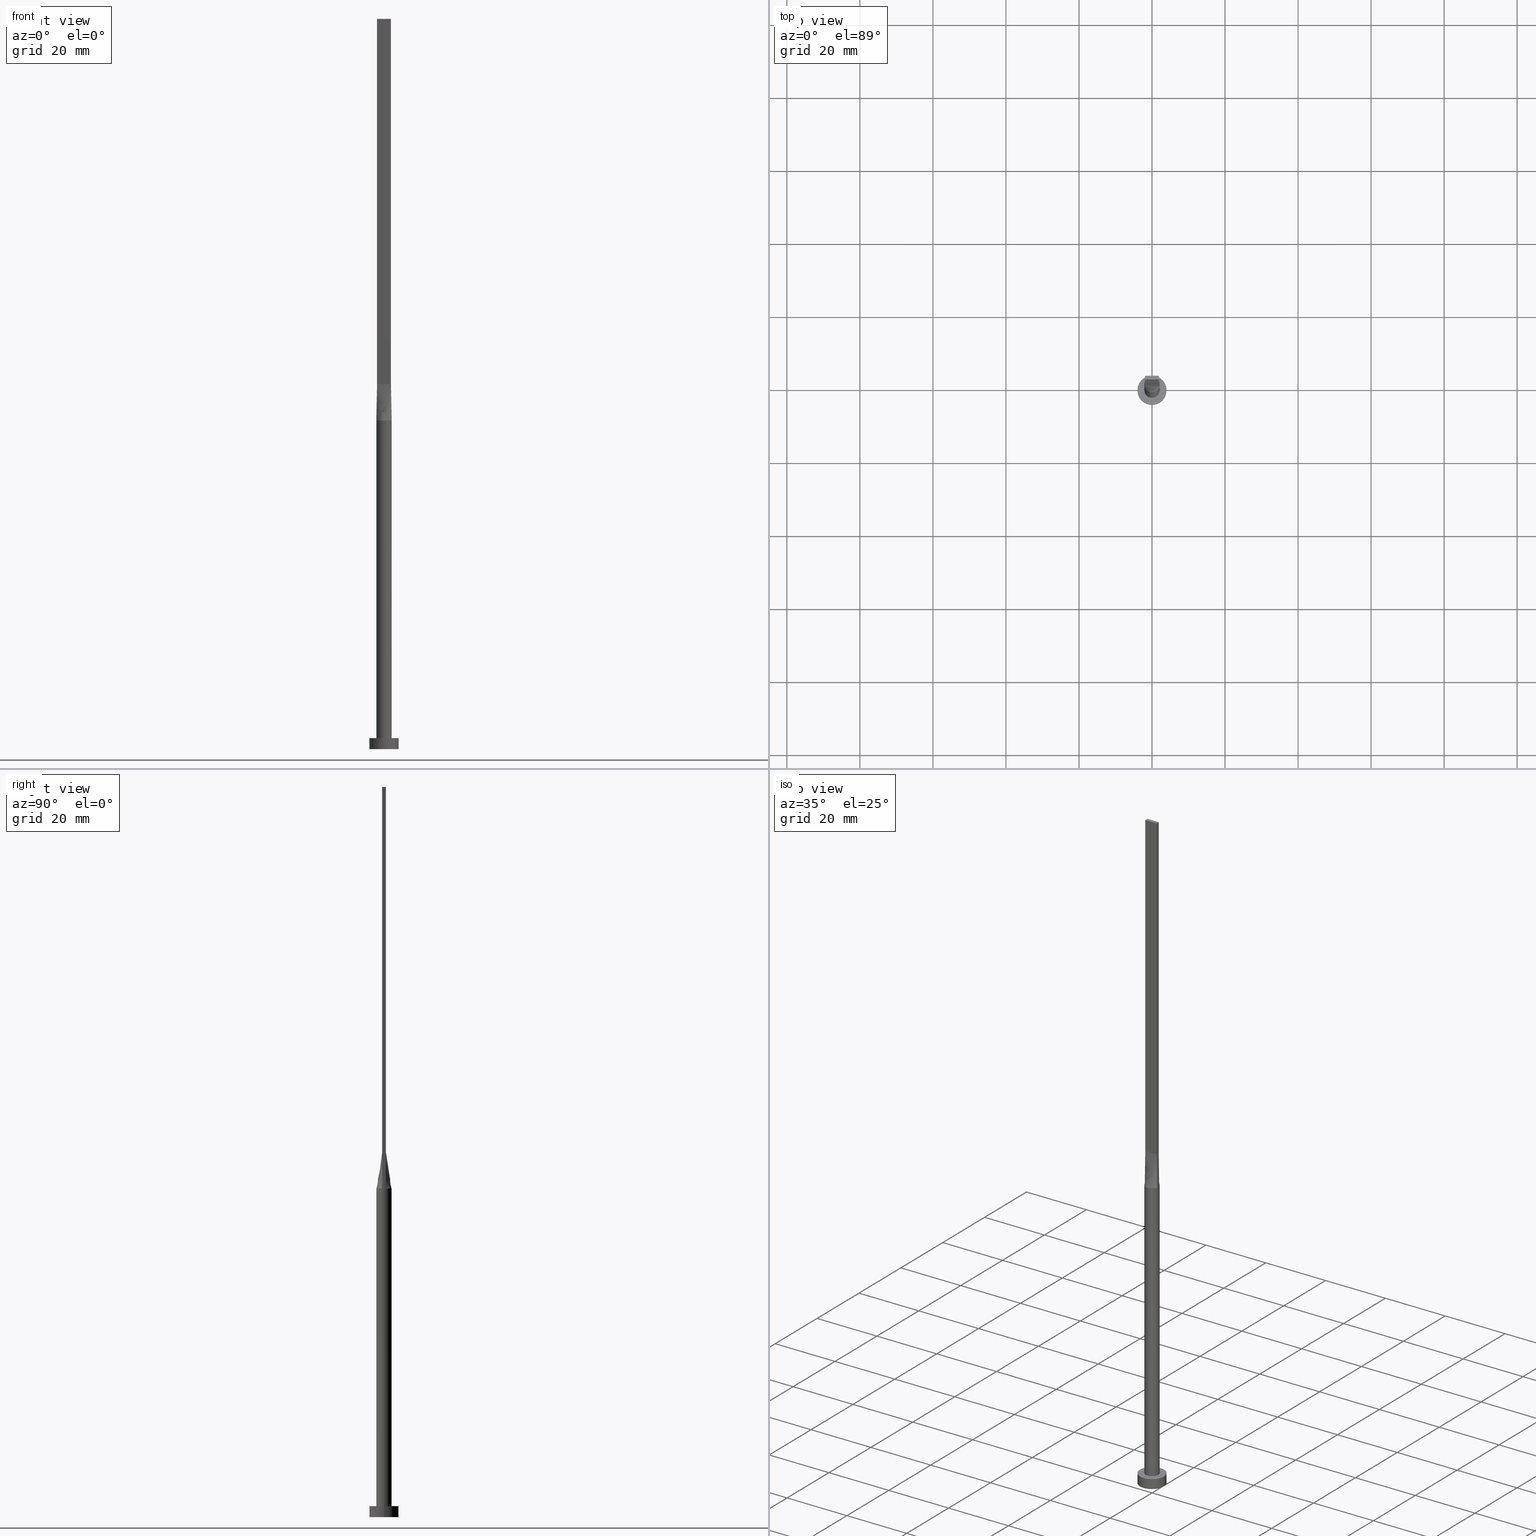
[diagram: canonical four-view strip — front | top / right | iso, engineering-drawing reading convention]
A machine part, canonical four-view strip (front | top / right | iso — engineering-drawing reading convention). The complete STEP part file that produces these views, byte-faithful:
ISO-10303-21;
HEADER;
FILE_DESCRIPTION (( 'STEP AP203' ),
    '1' );
FILE_NAME ('6539.STEP',
    '2026-02-12T09:03:30',
    ( '' ),
    ( '' ),
    'SwSTEP 2.0',
    'SolidWorks 2019',
    '' );
FILE_SCHEMA (( 'CONFIG_CONTROL_DESIGN' ));
ENDSEC;

DATA;
#1 = CARTESIAN_POINT ( 'NONE',  ( 1.021961681204346606, 1.852908961101259244, 90.00000000000001421 ) ) ;
#2 = FACE_OUTER_BOUND ( 'NONE', #52, .T. ) ;
#3 = CARTESIAN_POINT ( 'NONE',  ( 0.000000000000000000, 0.000000000000000000, 3.000000000000000000 ) ) ;
#4 = FACE_BOUND ( 'NONE', #95, .T. ) ;
#5 = ORIENTED_EDGE ( 'NONE', *, *, #533, .F. ) ;
#6 = DIRECTION ( 'NONE',  ( -1.000000000000000000, 6.505213034913026604E-16, 0.000000000000000000 ) ) ;
#7 = EDGE_CURVE ( 'NONE', #370, #446, #110, .T. ) ;
#8 = ORIENTED_EDGE ( 'NONE', *, *, #363, .F. ) ;
#9 = CARTESIAN_POINT ( 'NONE',  ( -1.741666666666666474, 0.5000000000000002220, 99.99999999999998579 ) ) ;
#10 = EDGE_LOOP ( 'NONE', ( #383, #288, #220, #190, #374 ) ) ;
#11 = CARTESIAN_POINT ( 'NONE',  ( -1.899999999999999689, 0.5000000000000002220, 99.99999999999998579 ) ) ;
#12 = CARTESIAN_POINT ( 'NONE',  ( 1.583604922800829984, -1.399063468093436846, 89.99999999999997158 ) ) ;
#13 = EDGE_LOOP ( 'NONE', ( #196, #497, #323, #231, #404, #548 ) ) ;
#14 = CARTESIAN_POINT ( 'NONE',  ( -1.920830191244604412, 0.8725264301372623876, 90.00000000000004263 ) ) ;
#15 = CARTESIAN_POINT ( 'NONE',  ( -1.583333333333333703, -0.4999999999999995559, 99.99999999999998579 ) ) ;
#16 = VERTEX_POINT ( 'NONE', #424 ) ;
#17 = AXIS2_PLACEMENT_3D ( 'NONE', #239, #378, #150 ) ;
#18 = CARTESIAN_POINT ( 'NONE',  ( 1.987786580065029396, -0.6981017315960611480, 90.00000000000001421 ) ) ;
#19 = CC_DESIGN_PERSON_AND_ORGANIZATION_ASSIGNMENT ( #205, #389, ( #197 ) ) ;
#20 = DIRECTION ( 'NONE',  ( 1.000000000000000000, 0.000000000000000000, -0.000000000000000000 ) ) ;
#21 = CARTESIAN_POINT ( 'NONE',  ( -0.3166666666666678731, -0.4999999999999995559, 99.99999999999997158 ) ) ;
#22 = FACE_OUTER_BOUND ( 'NONE', #272, .T. ) ;
#23 = LINE ( 'NONE', #517, #431 ) ;
#24 = FACE_OUTER_BOUND ( 'NONE', #13, .T. ) ;
#25 = CARTESIAN_POINT ( 'NONE',  ( 0.2698109971861041290, 2.100000000000000089, 90.00000000000000000 ) ) ;
#26 = DIRECTION ( 'NONE',  ( -0.01308445504626048160, 0.003443277643752832955, 0.9999084662483913588 ) ) ;
#27 = VECTOR ( 'NONE', #519, 1000.000000000000000 ) ;
#28 = APPLICATION_PROTOCOL_DEFINITION ( 'international standard', 'config_control_design', 1994, #524 ) ;
#29 = FACE_OUTER_BOUND ( 'NONE', #410, .T. ) ;
#30 =( NAMED_UNIT ( * ) PLANE_ANGLE_UNIT ( ) SI_UNIT ( $, .RADIAN. ) );
#31 = CARTESIAN_POINT ( 'NONE',  ( 1.899999999999999911, -0.4999999999999997780, 99.99999999999998579 ) ) ;
#32 = EDGE_CURVE ( 'NONE', #406, #455, #438, .T. ) ;
#33 = APPLICATION_PROTOCOL_DEFINITION ( 'international standard', 'config_control_design', 1994, #456 ) ;
#34 = PLANE ( 'NONE',  #471 ) ;
#35 = ORIENTED_EDGE ( 'NONE', *, *, #514, .T. ) ;
#36 = APPROVAL ( #166, 'NEUR�EN�' ) ;
#37 = CARTESIAN_POINT ( 'NONE',  ( 2.076193315816325047, 0.3621561357411385851, 90.00000000000000000 ) ) ;
#38 = EDGE_CURVE ( 'NONE', #377, #66, #566, .T. ) ;
#39 = CARTESIAN_POINT ( 'NONE',  ( -0.3166666666666662633, 0.5000000000000002220, 99.99999999999997158 ) ) ;
#40 = CC_DESIGN_SECURITY_CLASSIFICATION ( #493, ( #197 ) ) ;
#41 = PERSON_AND_ORGANIZATION ( #177, #555 ) ;
#42 = CARTESIAN_POINT ( 'NONE',  ( 1.266666666666666829, 0.5000000000000002220, 99.99999999999998579 ) ) ;
#43 = VECTOR ( 'NONE', #155, 1000.000000000000000 ) ;
#44 = CARTESIAN_POINT ( 'NONE',  ( 1.920830191244603746, 0.8725264301372623876, 90.00000000000000000 ) ) ;
#45 = ADVANCED_FACE ( 'NONE', ( #22 ), #299, .F. ) ;
#46 = SHAPE_DEFINITION_REPRESENTATION ( #460, #422 ) ;
#47 = ORIENTED_EDGE ( 'NONE', *, *, #49, .T. ) ;
#48 = CARTESIAN_POINT ( 'NONE',  ( 0.000000000000000000, 0.000000000000000000, 3.000000000000000000 ) ) ;
#49 = EDGE_CURVE ( 'NONE', #453, #178, #153, .T. ) ;
#50 = ORIENTED_EDGE ( 'NONE', *, *, #236, .F. ) ;
#51 = CARTESIAN_POINT ( 'NONE',  ( 1.108333333333333393, 0.5000000000000002220, 99.99999999999997158 ) ) ;
#52 = EDGE_LOOP ( 'NONE', ( #217, #136, #203, #35 ) ) ;
#53 = ORIENTED_EDGE ( 'NONE', *, *, #579, .F. ) ;
#54 = CARTESIAN_POINT ( 'NONE',  ( 1.899999999999999023, -0.4999999999999997780, 200.0000000000000000 ) ) ;
#55 = CARTESIAN_POINT ( 'NONE',  ( 0.000000000000000000, 0.000000000000000000, 3.000000000000000000 ) ) ;
#56 = ORIENTED_EDGE ( 'NONE', *, *, #199, .T. ) ;
#57 = DIRECTION ( 'NONE',  ( 1.000000000000000000, 0.000000000000000000, -0.000000000000000000 ) ) ;
#58 = LINE ( 'NONE', #60, #543 ) ;
#59 = ORIENTED_EDGE ( 'NONE', *, *, #449, .F. ) ;
#60 = CARTESIAN_POINT ( 'NONE',  ( -2.100000000000000089, 0.000000000000000000, 90.00000000000000000 ) ) ;
#61 = EDGE_CURVE ( 'NONE', #501, #406, #478, .T. ) ;
#62 = VERTEX_POINT ( 'NONE', #426 ) ;
#63 = FACE_OUTER_BOUND ( 'NONE', #278, .T. ) ;
#64 = CIRCLE ( 'NONE', #509, 4.000000000000000000 ) ;
#65 = CARTESIAN_POINT ( 'NONE',  ( -0.1583333333333350190, -0.4999999999999995559, 99.99999999999995737 ) ) ;
#66 = VERTEX_POINT ( 'NONE', #160 ) ;
#67 = LINE ( 'NONE', #244, #309 ) ;
#68 = CARTESIAN_POINT ( 'NONE',  ( -1.987786580065029174, 0.6981017315960602598, 90.00000000000000000 ) ) ;
#69 = LOCAL_TIME ( 10, 3, 30.00000000000000000, #352 ) ;
#70 = CARTESIAN_POINT ( 'NONE',  ( 1.899999999999999689, 0.5000000000000002220, 99.99999999999998579 ) ) ;
#71 = DIRECTION ( 'NONE',  ( 0.000000000000000000, 0.000000000000000000, 1.000000000000000000 ) ) ;
#72 = CARTESIAN_POINT ( 'NONE',  ( 1.920830191244603746, 0.8725264301372623876, 90.00000000000000000 ) ) ;
#73 = FACE_OUTER_BOUND ( 'NONE', #541, .T. ) ;
#74 =( GEOMETRIC_REPRESENTATION_CONTEXT ( 3 ) GLOBAL_UNCERTAINTY_ASSIGNED_CONTEXT ( ( #373 ) ) GLOBAL_UNIT_ASSIGNED_CONTEXT ( ( #307, #30, #355 ) ) REPRESENTATION_CONTEXT ( 'NONE', 'WORKASPACE' ) );
#75 = DIRECTION ( 'NONE',  ( 1.000000000000000000, 0.000000000000000000, 0.000000000000000000 ) ) ;
#76 = ADVANCED_FACE ( 'NONE', ( #344 ), #118, .T. ) ;
#77 = CARTESIAN_POINT ( 'NONE',  ( -2.076193315816325491, -0.3621561357411375859, 90.00000000000000000 ) ) ;
#78 = CARTESIAN_POINT ( 'NONE',  ( -1.899999999999999689, 0.5000000000000002220, 200.0000000000000000 ) ) ;
#79 = LINE ( 'NONE', #125, #84 ) ;
#80 = CARTESIAN_POINT ( 'NONE',  ( 0.000000000000000000, 0.000000000000000000, 0.000000000000000000 ) ) ;
#81 = ORIENTED_EDGE ( 'NONE', *, *, #544, .T. ) ;
#82 = DIRECTION ( 'NONE',  ( -0.000000000000000000, -0.000000000000000000, -1.000000000000000000 ) ) ;
#83 = AXIS2_PLACEMENT_3D ( 'NONE', #243, #518, #341 ) ;
#84 = VECTOR ( 'NONE', #82, 1000.000000000000000 ) ;
#85 = DATE_AND_TIME ( #532, #69 ) ;
#86 = ORIENTED_EDGE ( 'NONE', *, *, #491, .T. ) ;
#87 = CARTESIAN_POINT ( 'NONE',  ( 0.2698109971861041290, 2.100000000000000089, 90.00000000000000000 ) ) ;
#88 = LINE ( 'NONE', #316, #443 ) ;
#89 = DIRECTION ( 'NONE',  ( -0.000000000000000000, -0.000000000000000000, -1.000000000000000000 ) ) ;
#90 = ORIENTED_EDGE ( 'NONE', *, *, #93, .T. ) ;
#91 = AXIS2_PLACEMENT_3D ( 'NONE', #209, #485, #161 ) ;
#92 = ORIENTED_EDGE ( 'NONE', *, *, #420, .F. ) ;
#93 = EDGE_CURVE ( 'NONE', #241, #501, #330, .T. ) ;
#94 = DIRECTION ( 'NONE',  ( -0.01308445504626046078, -0.003443277643752800429, 0.9999084662483913588 ) ) ;
#95 = EDGE_LOOP ( 'NONE', ( #545, #106 ) ) ;
#96 = DIRECTION ( 'NONE',  ( 1.000000000000000000, 0.000000000000000000, 0.000000000000000000 ) ) ;
#97 = CC_DESIGN_APPROVAL ( #435, ( #493 ) ) ;
#98 = ADVANCED_FACE ( 'NONE', ( #63 ), #338, .T. ) ;
#99 = ORIENTED_EDGE ( 'NONE', *, *, #349, .T. ) ;
#100 = CARTESIAN_POINT ( 'NONE',  ( -2.030856528251557602, 0.5344359284872521876, 90.00000000000000000 ) ) ;
#101 = CARTESIAN_POINT ( 'NONE',  ( -0.2698109971861053502, -2.100000000000000089, 90.00000000000001421 ) ) ;
#102 = AXIS2_PLACEMENT_3D ( 'NONE', #147, #554, #57 ) ;
#103 = ORIENTED_EDGE ( 'NONE', *, *, #303, .T. ) ;
#104 = DIRECTION ( 'NONE',  ( -1.000000000000000000, -0.000000000000000000, -0.000000000000000000 ) ) ;
#105 = CARTESIAN_POINT ( 'NONE',  ( -0.5389299406762309008, -2.046272663899432409, 90.00000000000004263 ) ) ;
#106 = ORIENTED_EDGE ( 'NONE', *, *, #339, .F. ) ;
#107 = CARTESIAN_POINT ( 'NONE',  ( -1.987786580065029840, -0.6981017315960599268, 90.00000000000001421 ) ) ;
#108 = CARTESIAN_POINT ( 'NONE',  ( 0.000000000000000000, 0.000000000000000000, 90.00000000000000000 ) ) ;
#109 = CARTESIAN_POINT ( 'NONE',  ( -1.235326090059015725, -1.714395692508636104, 89.99999999999997158 ) ) ;
#110 = CIRCLE ( 'NONE', #315, 2.100000000000000089 ) ;
#111 = CARTESIAN_POINT ( 'NONE',  ( 0.000000000000000000, 0.000000000000000000, 3.000000000000000000 ) ) ;
#112 = AXIS2_PLACEMENT_3D ( 'NONE', #353, #479, #122 ) ;
#113 = ADVANCED_FACE ( 'NONE', ( #392 ), #390, .T. ) ;
#114 = CARTESIAN_POINT ( 'NONE',  ( 0.6333333333333319715, -0.4999999999999995559, 99.99999999999997158 ) ) ;
#115 = DIRECTION ( 'NONE',  ( 1.000000000000000000, 0.000000000000000000, 0.000000000000000000 ) ) ;
#116 = DIRECTION ( 'NONE',  ( 1.000000000000000000, 0.000000000000000000, 0.000000000000000000 ) ) ;
#117 = DATE_TIME_ROLE ( 'creation_date' ) ;
#118 = CYLINDRICAL_SURFACE ( 'NONE', #17, 4.000000000000000000 ) ;
#119 = LOCAL_TIME ( 10, 3, 30.00000000000000000, #578 ) ;
#120 = CARTESIAN_POINT ( 'NONE',  ( -1.899999999999999689, 0.5000000000000002220, 99.99999999999998579 ) ) ;
#121 = VECTOR ( 'NONE', #402, 1000.000000000000000 ) ;
#122 = DIRECTION ( 'NONE',  ( -1.000000000000000000, 0.000000000000000000, 0.000000000000000000 ) ) ;
#123 = CARTESIAN_POINT ( 'NONE',  ( 1.899999999999999689, -0.1666666666666672125, 99.99999999999997158 ) ) ;
#124 = CC_DESIGN_PERSON_AND_ORGANIZATION_ASSIGNMENT ( #248, #259, ( #158 ) ) ;
#125 = CARTESIAN_POINT ( 'NONE',  ( 2.100000000000000089, 2.571758278209441957E-16, 90.00000000000000000 ) ) ;
#126 = PLANE ( 'NONE',  #156 ) ;
#127 = CARTESIAN_POINT ( 'NONE',  ( -2.031004407172260162, -0.5344754071304557153, 90.00000000000000000 ) ) ;
#128 = AXIS2_PLACEMENT_3D ( 'NONE', #482, #162, #430 ) ;
#129 = DIRECTION ( 'NONE',  ( 1.000000000000000000, 0.000000000000000000, -0.000000000000000000 ) ) ;
#130 = CARTESIAN_POINT ( 'NONE',  ( 1.899999999999999023, -0.4999999999999997780, 99.99999999999998579 ) ) ;
#131 = PERSON_AND_ORGANIZATION_ROLE ( 'design_supplier' ) ;
#132 = EDGE_CURVE ( 'NONE', #16, #370, #302, .T. ) ;
#133 = ORIENTED_EDGE ( 'NONE', *, *, #466, .F. ) ;
#134 = CARTESIAN_POINT ( 'NONE',  ( -1.899999999999999911, -0.4999999999999995559, 200.0000000000000000 ) ) ;
#135 = VECTOR ( 'NONE', #89, 1000.000000000000000 ) ;
#136 = ORIENTED_EDGE ( 'NONE', *, *, #491, .F. ) ;
#137 = DIRECTION ( 'NONE',  ( -1.000000000000000000, 5.706327223607920020E-17, 0.000000000000000000 ) ) ;
#138 = ORIENTED_EDGE ( 'NONE', *, *, #252, .F. ) ;
#139 = ORIENTED_EDGE ( 'NONE', *, *, #403, .F. ) ;
#140 = CARTESIAN_POINT ( 'NONE',  ( -1.987786580065029174, 0.6981017315960602598, 90.00000000000000000 ) ) ;
#141 = ADVANCED_FACE ( 'NONE', ( #73 ), #34, .F. ) ;
#142 = ORIENTED_EDGE ( 'NONE', *, *, #7, .T. ) ;
#143 = PLANE ( 'NONE',  #102 ) ;
#144 = LINE ( 'NONE', #329, #27 ) ;
#145 = EDGE_LOOP ( 'NONE', ( #99, #219, #553, #504 ) ) ;
#146 = VERTEX_POINT ( 'NONE', #120 ) ;
#147 = CARTESIAN_POINT ( 'NONE',  ( 0.000000000000000000, 0.000000000000000000, 200.0000000000000000 ) ) ;
#148 = APPROVAL_STATUS ( 'not_yet_approved' ) ;
#149 = CARTESIAN_POINT ( 'NONE',  ( -1.920830191244604412, -0.8725264301372614995, 90.00000000000000000 ) ) ;
#150 = DIRECTION ( 'NONE',  ( -1.000000000000000000, 0.000000000000000000, 0.000000000000000000 ) ) ;
#151 = DIRECTION ( 'NONE',  ( -0.000000000000000000, -0.000000000000000000, -1.000000000000000000 ) ) ;
#152 = ADVANCED_FACE ( 'NONE', ( #29 ), #306, .T. ) ;
#153 = LINE ( 'NONE', #474, #43 ) ;
#154 = CARTESIAN_POINT ( 'NONE',  ( 1.235326090059013504, -1.714395692508636548, 90.00000000000000000 ) ) ;
#155 = DIRECTION ( 'NONE',  ( -0.000000000000000000, -0.000000000000000000, -1.000000000000000000 ) ) ;
#156 = AXIS2_PLACEMENT_3D ( 'NONE', #78, #343, #530 ) ;
#157 = CARTESIAN_POINT ( 'NONE',  ( -1.899999999999999689, -0.3333333333333330928, 99.99999999999997158 ) ) ;
#158 = PRODUCT_DEFINITION ( 'NEZN�M�', '', #197, #461 ) ;
#159 = DATE_AND_TIME ( #568, #450 ) ;
#160 = CARTESIAN_POINT ( 'NONE',  ( 4.000000000000000000, 4.898587196589412829E-16, 3.000000000000000000 ) ) ;
#161 = DIRECTION ( 'NONE',  ( -1.000000000000000000, 0.000000000000000000, 0.000000000000000000 ) ) ;
#162 = DIRECTION ( 'NONE',  ( -0.000000000000000000, -0.000000000000000000, -1.000000000000000000 ) ) ;
#163 = CARTESIAN_POINT ( 'NONE',  ( 1.899999999999999689, 0.5000000000000002220, 99.99999999999998579 ) ) ;
#164 = VECTOR ( 'NONE', #151, 1000.000000000000000 ) ;
#165 = CARTESIAN_POINT ( 'NONE',  ( 1.899999999999999467, 0.3333333333333330373, 99.99999999999997158 ) ) ;
#166 = APPROVAL_STATUS ( 'not_yet_approved' ) ;
#167 = CARTESIAN_POINT ( 'NONE',  ( -1.899999999999999911, -0.4999999999999995559, 99.99999999999998579 ) ) ;
#168 = APPROVAL_ROLE ( '' ) ;
#169 = ORIENTED_EDGE ( 'NONE', *, *, #61, .T. ) ;
#170 = CARTESIAN_POINT ( 'NONE',  ( 0.6333333333333333037, 0.5000000000000002220, 99.99999999999997158 ) ) ;
#171 = LINE ( 'NONE', #365, #529 ) ;
#172 = VECTOR ( 'NONE', #405, 1000.000000000000000 ) ;
#173 = CARTESIAN_POINT ( 'NONE',  ( 1.235326090059014614, 1.714395692508636770, 90.00000000000002842 ) ) ;
#174 = APPROVAL_DATE_TIME ( #233, #435 ) ;
#175 = DIRECTION ( 'NONE',  ( -2.168404344971009361E-16, -1.000000000000000000, 0.000000000000000000 ) ) ;
#176 = ORIENTED_EDGE ( 'NONE', *, *, #7, .F. ) ;
#177 = PERSON ( 'NEUR�EN�', 'NEUR�EN�', 'NEUR�EN�', ('NEUR�EN�'), ('NEUR�EN�'), ('NEUR�EN�') ) ;
#178 = VERTEX_POINT ( 'NONE', #163 ) ;
#179 = CARTESIAN_POINT ( 'NONE',  ( 1.741666666666666474, 0.5000000000000002220, 100.0000000000000000 ) ) ;
#180 = VECTOR ( 'NONE', #428, 1000.000000000000000 ) ;
#181 = ORIENTED_EDGE ( 'NONE', *, *, #242, .T. ) ;
#182 = LINE ( 'NONE', #549, #366 ) ;
#183 = ORIENTED_EDGE ( 'NONE', *, *, #245, .F. ) ;
#184 = CARTESIAN_POINT ( 'NONE',  ( -1.108333333333333171, 0.5000000000000002220, 99.99999999999998579 ) ) ;
#185 = CARTESIAN_POINT ( 'NONE',  ( 0.000000000000000000, 0.000000000000000000, 90.00000000000000000 ) ) ;
#186 = VERTEX_POINT ( 'NONE', #534 ) ;
#187 = CARTESIAN_POINT ( 'NONE',  ( -1.266666666666666607, 0.5000000000000002220, 99.99999999999998579 ) ) ;
#188 = CARTESIAN_POINT ( 'NONE',  ( -1.108333333333334059, -0.4999999999999995559, 99.99999999999997158 ) ) ;
#189 = CIRCLE ( 'NONE', #488, 2.100000000000000089 ) ;
#190 = ORIENTED_EDGE ( 'NONE', *, *, #349, .F. ) ;
#191 = CARTESIAN_POINT ( 'NONE',  ( 2.030856528251557158, -0.5344359284872526317, 90.00000000000000000 ) ) ;
#192 = ADVANCED_FACE ( 'NONE', ( #212 ), #563, .T. ) ;
#193 = ORIENTED_EDGE ( 'NONE', *, *, #533, .T. ) ;
#194 = CARTESIAN_POINT ( 'NONE',  ( -0.2698109971861040179, 2.100000000000000089, 90.00000000000001421 ) ) ;
#195 = CARTESIAN_POINT ( 'NONE',  ( 0.3166666666666650976, -0.4999999999999995559, 99.99999999999995737 ) ) ;
#196 = ORIENTED_EDGE ( 'NONE', *, *, #93, .F. ) ;
#197 = PRODUCT_DEFINITION_FORMATION_WITH_SPECIFIED_SOURCE ( 'LIBOVOLN�', '', #387, .NOT_KNOWN. ) ;
#198 = DIRECTION ( 'NONE',  ( 0.000000000000000000, 0.000000000000000000, 1.000000000000000000 ) ) ;
#199 = EDGE_CURVE ( 'NONE', #446, #241, #208, .T. ) ;
#200 = CARTESIAN_POINT ( 'NONE',  ( -4.000000000000000000, 0.000000000000000000, 3.000000000000000000 ) ) ;
#201 = CARTESIAN_POINT ( 'NONE',  ( 0.000000000000000000, 0.000000000000000000, 0.000000000000000000 ) ) ;
#202 = AXIS2_PLACEMENT_3D ( 'NONE', #3, #218, #96 ) ;
#203 = ORIENTED_EDGE ( 'NONE', *, *, #303, .F. ) ;
#204 = LINE ( 'NONE', #397, #268 ) ;
#205 = PERSON_AND_ORGANIZATION ( #177, #555 ) ;
#206 = CARTESIAN_POINT ( 'NONE',  ( -2.030856528251557602, 0.5344359284872521876, 90.00000000000000000 ) ) ;
#207 = CARTESIAN_POINT ( 'NONE',  ( 2.100000000000000089, -0.1811271572287806442, 90.00000000000001421 ) ) ;
#208 = CIRCLE ( 'NONE', #498, 2.100000000000000089 ) ;
#209 = CARTESIAN_POINT ( 'NONE',  ( 0.000000000000000000, 0.000000000000000000, 90.00000000000000000 ) ) ;
#210 = MECHANICAL_CONTEXT ( 'NONE', #456, 'mechanical' ) ;
#211 = VERTEX_POINT ( 'NONE', #351 ) ;
#212 = FACE_OUTER_BOUND ( 'NONE', #10, .T. ) ;
#213 = CARTESIAN_POINT ( 'NONE',  ( 1.899999999999999023, -0.4999999999999997780, 200.0000000000000000 ) ) ;
#214 = PERSON_AND_ORGANIZATION ( #177, #555 ) ;
#215 = CARTESIAN_POINT ( 'NONE',  ( -1.899999999999999689, 0.5000000000000002220, 200.0000000000000000 ) ) ;
#216 = AXIS2_PLACEMENT_3D ( 'NONE', #346, #527, #395 ) ;
#217 = ORIENTED_EDGE ( 'NONE', *, *, #466, .T. ) ;
#218 = DIRECTION ( 'NONE',  ( 0.000000000000000000, 0.000000000000000000, 1.000000000000000000 ) ) ;
#219 = ORIENTED_EDGE ( 'NONE', *, *, #514, .F. ) ;
#220 = ORIENTED_EDGE ( 'NONE', *, *, #132, .F. ) ;
#221 = CARTESIAN_POINT ( 'NONE',  ( 1.583604922800830428, 1.399063468093436624, 90.00000000000000000 ) ) ;
#222 = EDGE_CURVE ( 'NONE', #446, #260, #531, .T. ) ;
#223 = B_SPLINE_SURFACE_WITH_KNOTS ( 'NONE', 3, 1, ( 
 ( #452, #546 ),
 ( #442, #179 ),
 ( #44, #542 ),
 ( #273, #42 ),
 ( #221, #51 ),
 ( #173, #225 ),
 ( #1, #170 ),
 ( #357, #536 ),
 ( #87, #310 ),
 ( #489, #261 ),
 ( #359, #39 ),
 ( #539, #284 ),
 ( #551, #228 ),
 ( #279, #184 ),
 ( #457, #187 ),
 ( #14, #408 ),
 ( #140, #9 ),
 ( #100, #505 ) ),
 .UNSPECIFIED., .F., .F., .F.,
 ( 4, 2, 2, 2, 2, 2, 2, 2, 4 ),
 ( 2, 2 ),
 ( 0.000000000000000000, 0.1250000000000000278, 0.2500000000000000555, 0.3750000000000001110, 0.5000000000000000000, 0.6250000000000000000, 0.7500000000000000000, 0.8750000000000001110, 1.000000000000000000 ),
 ( 0.000000000000000000, 1.000000000000000000 ),
 .UNSPECIFIED. ) ;
#224 = ORIENTED_EDGE ( 'NONE', *, *, #454, .F. ) ;
#225 = CARTESIAN_POINT ( 'NONE',  ( 0.7916666666666666297, 0.5000000000000002220, 99.99999999999997158 ) ) ;
#226 = VECTOR ( 'NONE', #368, 1000.000000000000000 ) ;
#227 = ORIENTED_EDGE ( 'NONE', *, *, #277, .F. ) ;
#228 = CARTESIAN_POINT ( 'NONE',  ( -0.7916666666666662966, 0.5000000000000002220, 99.99999999999998579 ) ) ;
#229 = DIRECTION ( 'NONE',  ( 0.000000000000000000, 0.000000000000000000, 1.000000000000000000 ) ) ;
#230 = ORIENTED_EDGE ( 'NONE', *, *, #403, .T. ) ;
#231 = ORIENTED_EDGE ( 'NONE', *, *, #469, .F. ) ;
#232 = CARTESIAN_POINT ( 'NONE',  ( 1.899999999999999689, 0.5000000000000002220, 200.0000000000000000 ) ) ;
#233 = DATE_AND_TIME ( #262, #573 ) ;
#234 = CARTESIAN_POINT ( 'NONE',  ( 1.741666666666665586, -0.4999999999999997780, 99.99999999999998579 ) ) ;
#235 = EDGE_LOOP ( 'NONE', ( #8, #269, #193, #181 ) ) ;
#236 = EDGE_CURVE ( 'NONE', #241, #367, #79, .T. ) ;
#237 = CARTESIAN_POINT ( 'NONE',  ( -1.741666666666666918, -0.4999999999999995559, 99.99999999999998579 ) ) ;
#238 = AXIS2_PLACEMENT_3D ( 'NONE', #134, #399, #137 ) ;
#239 = CARTESIAN_POINT ( 'NONE',  ( 0.000000000000000000, 0.000000000000000000, 3.000000000000000000 ) ) ;
#240 = LINE ( 'NONE', #200, #317 ) ;
#241 = VERTEX_POINT ( 'NONE', #255 ) ;
#242 = EDGE_CURVE ( 'NONE', #507, #186, #520, .T. ) ;
#243 = CARTESIAN_POINT ( 'NONE',  ( 0.000000000000000000, 0.000000000000000000, 90.00000000000000000 ) ) ;
#244 = CARTESIAN_POINT ( 'NONE',  ( -1.899999999999999689, 0.5000000000000002220, 200.0000000000000000 ) ) ;
#245 = EDGE_CURVE ( 'NONE', #260, #178, #475, .T. ) ;
#246 = CARTESIAN_POINT ( 'NONE',  ( -2.031019593402089818, 0.5344793603115657321, 90.00000000000000000 ) ) ;
#247 = CARTESIAN_POINT ( 'NONE',  ( 1.899999999999999689, 0.5000000000000002220, 99.99999999999998579 ) ) ;
#248 = PERSON_AND_ORGANIZATION ( #177, #555 ) ;
#249 = DIRECTION ( 'NONE',  ( 0.000000000000000000, 0.000000000000000000, 1.000000000000000000 ) ) ;
#250 = CARTESIAN_POINT ( 'NONE',  ( 2.076193315816324603, -0.3621561357411388626, 89.99999999999998579 ) ) ;
#251 = PERSON_AND_ORGANIZATION ( #177, #555 ) ;
#252 = EDGE_CURVE ( 'NONE', #501, #178, #204, .T. ) ;
#253 = CARTESIAN_POINT ( 'NONE',  ( 0.000000000000000000, 0.000000000000000000, 90.00000000000000000 ) ) ;
#254 = FACE_OUTER_BOUND ( 'NONE', #145, .T. ) ;
#255 = CARTESIAN_POINT ( 'NONE',  ( 2.100000000000000089, 3.372022381799045987E-17, 90.00000000000000000 ) ) ;
#256 = ADVANCED_FACE ( 'NONE', ( #2 ), #540, .F. ) ;
#257 = AXIS2_PLACEMENT_3D ( 'NONE', #213, #6, #275 ) ;
#258 = CARTESIAN_POINT ( 'NONE',  ( 1.899999999999999689, -0.3333333333333335924, 99.99999999999997158 ) ) ;
#259 = PERSON_AND_ORGANIZATION_ROLE ( 'creator' ) ;
#260 = VERTEX_POINT ( 'NONE', #130 ) ;
#261 = CARTESIAN_POINT ( 'NONE',  ( -0.1583333333333329651, 0.5000000000000002220, 99.99999999999997158 ) ) ;
#262 = CALENDAR_DATE ( 2026, 12, 2 ) ;
#263 = EDGE_LOOP ( 'NONE', ( #224, #550, #413, #5 ) ) ;
#264 = LOCAL_TIME ( 10, 3, 30.00000000000000000, #285 ) ;
#265 = FACE_OUTER_BOUND ( 'NONE', #401, .T. ) ;
#266 = APPROVAL_ROLE ( '' ) ;
#267 = CARTESIAN_POINT ( 'NONE',  ( -4.000000000000000000, 0.000000000000000000, 3.000000000000000000 ) ) ;
#268 = VECTOR ( 'NONE', #94, 1000.000000000000114 ) ;
#269 = ORIENTED_EDGE ( 'NONE', *, *, #38, .F. ) ;
#270 = SECURITY_CLASSIFICATION_LEVEL ( 'unclassified' ) ;
#271 = CLOSED_SHELL ( 'NONE', ( #565, #76, #113, #308, #45, #152, #486, #98, #192, #400, #141, #561, #256, #380, #437 ) ) ;
#272 = EDGE_LOOP ( 'NONE', ( #447, #53 ) ) ;
#273 = CARTESIAN_POINT ( 'NONE',  ( 1.719043754744862040, 1.223020672007445464, 90.00000000000005684 ) ) ;
#274 = ORIENTED_EDGE ( 'NONE', *, *, #469, .T. ) ;
#275 = DIRECTION ( 'NONE',  ( -6.505213034913026604E-16, -1.000000000000000000, 0.000000000000000000 ) ) ;
#276 = CC_DESIGN_APPROVAL ( #36, ( #197 ) ) ;
#277 = EDGE_CURVE ( 'NONE', #451, #146, #492, .T. ) ;
#278 = EDGE_LOOP ( 'NONE', ( #56, #90, #575, #183, #331 ) ) ;
#279 = CARTESIAN_POINT ( 'NONE',  ( -1.583604922800830428, 1.399063468093436402, 89.99999999999998579 ) ) ;
#280 = CARTESIAN_POINT ( 'NONE',  ( 1.583333333333332149, -0.4999999999999997780, 99.99999999999998579 ) ) ;
#281 = AXIS2_PLACEMENT_3D ( 'NONE', #48, #445, #129 ) ;
#282 = ORIENTED_EDGE ( 'NONE', *, *, #222, .T. ) ;
#283 = CC_DESIGN_PERSON_AND_ORGANIZATION_ASSIGNMENT ( #251, #433, ( #387 ) ) ;
#284 = CARTESIAN_POINT ( 'NONE',  ( -0.6333333333333329707, 0.5000000000000002220, 99.99999999999997158 ) ) ;
#285 = COORDINATED_UNIVERSAL_TIME_OFFSET ( 1, 0, .AHEAD. ) ;
#286 = CARTESIAN_POINT ( 'NONE',  ( 1.719043754744861374, -1.223020672007445908, 90.00000000000004263 ) ) ;
#287 = MANIFOLD_SOLID_BREP ( 'P�idat vysunut�m5', #271 ) ;
#288 = ORIENTED_EDGE ( 'NONE', *, *, #557, .T. ) ;
#289 = DIRECTION ( 'NONE',  ( -0.000000000000000000, -0.000000000000000000, -1.000000000000000000 ) ) ;
#290 = DIRECTION ( 'NONE',  ( 0.000000000000000000, 0.000000000000000000, 1.000000000000000000 ) ) ;
#291 = DIRECTION ( 'NONE',  ( -0.000000000000000000, -0.000000000000000000, -1.000000000000000000 ) ) ;
#292 = VECTOR ( 'NONE', #104, 1000.000000000000000 ) ;
#293 = CARTESIAN_POINT ( 'NONE',  ( 1.235326090059014614, 1.714395692508636770, 90.00000000000002842 ) ) ;
#294 = CARTESIAN_POINT ( 'NONE',  ( 1.899999999999999023, -0.4999999999999997780, 200.0000000000000000 ) ) ;
#295 = EDGE_CURVE ( 'NONE', #406, #146, #171, .T. ) ;
#296 = CARTESIAN_POINT ( 'NONE',  ( -1.920830191244604412, 0.8725264301372623876, 90.00000000000004263 ) ) ;
#297 = CARTESIAN_POINT ( 'NONE',  ( 2.100000000000000089, 0.1811271572287802556, 89.99999999999997158 ) ) ;
#298 = PERSON_AND_ORGANIZATION ( #177, #555 ) ;
#299 = PLANE ( 'NONE',  #480 ) ;
#300 = CARTESIAN_POINT ( 'NONE',  ( -2.100000000000000977, -0.1811271572287798393, 90.00000000000001421 ) ) ;
#301 = DIRECTION ( 'NONE',  ( 1.000000000000000000, 0.000000000000000000, 0.000000000000000000 ) ) ;
#302 = LINE ( 'NONE', #388, #458 ) ;
#303 = EDGE_CURVE ( 'NONE', #211, #417, #502, .T. ) ;
#304 = DIRECTION ( 'NONE',  ( 0.000000000000000000, -1.000000000000000000, 0.000000000000000000 ) ) ;
#305 = CALENDAR_DATE ( 2026, 12, 2 ) ;
#306 = CYLINDRICAL_SURFACE ( 'NONE', #91, 2.100000000000000089 ) ;
#307 =( LENGTH_UNIT ( ) NAMED_UNIT ( * ) SI_UNIT ( .MILLI., .METRE. ) );
#308 = ADVANCED_FACE ( 'NONE', ( #4, #265 ), #312, .T. ) ;
#309 = VECTOR ( 'NONE', #473, 1000.000000000000000 ) ;
#310 = CARTESIAN_POINT ( 'NONE',  ( 0.1583333333333335757, 0.5000000000000002220, 99.99999999999997158 ) ) ;
#311 = LINE ( 'NONE', #494, #135 ) ;
#312 = PLANE ( 'NONE',  #281 ) ;
#313 = DATE_AND_TIME ( #358, #264 ) ;
#314 = ORIENTED_EDGE ( 'NONE', *, *, #49, .F. ) ;
#315 = AXIS2_PLACEMENT_3D ( 'NONE', #337, #472, #115 ) ;
#316 = CARTESIAN_POINT ( 'NONE',  ( -1.899999999999999689, 0.5000000000000002220, 99.99999999999998579 ) ) ;
#317 = VECTOR ( 'NONE', #459, 1000.000000000000000 ) ;
#318 = APPROVAL_PERSON_ORGANIZATION ( #581, #369, #168 ) ;
#319 = DATE_TIME_ROLE ( 'classification_date' ) ;
#320 = ORIENTED_EDGE ( 'NONE', *, *, #449, .T. ) ;
#321 = CARTESIAN_POINT ( 'NONE',  ( -1.899999999999999911, -0.4999999999999995559, 200.0000000000000000 ) ) ;
#322 = ORIENTED_EDGE ( 'NONE', *, *, #199, .F. ) ;
#323 = ORIENTED_EDGE ( 'NONE', *, *, #339, .T. ) ;
#324 = CARTESIAN_POINT ( 'NONE',  ( -2.031019593402089818, 0.5344793603115657321, 90.00000000000000000 ) ) ;
#325 = CARTESIAN_POINT ( 'NONE',  ( 0.7916666666666652974, -0.4999999999999996669, 99.99999999999997158 ) ) ;
#326 = ORIENTED_EDGE ( 'NONE', *, *, #132, .T. ) ;
#327 = EDGE_LOOP ( 'NONE', ( #230, #361, #103, #462 ) ) ;
#328 = CARTESIAN_POINT ( 'NONE',  ( 2.031027953490633031, -0.5344816358097418396, 90.00000000000000000 ) ) ;
#329 = CARTESIAN_POINT ( 'NONE',  ( -1.899999999999999911, -0.4999999999999995559, 99.99999999999998579 ) ) ;
#330 = CIRCLE ( 'NONE', #439, 2.100000000000000089 ) ;
#331 = ORIENTED_EDGE ( 'NONE', *, *, #222, .F. ) ;
#332 = CARTESIAN_POINT ( 'NONE',  ( -1.899999999999999689, 0.5000000000000002220, 200.0000000000000000 ) ) ;
#333 = CARTESIAN_POINT ( 'NONE',  ( 0.1583333333333314941, -0.4999999999999995559, 99.99999999999995737 ) ) ;
#334 = CARTESIAN_POINT ( 'NONE',  ( 1.021961681204346606, 1.852908961101259244, 90.00000000000001421 ) ) ;
#335 = PRODUCT_RELATED_PRODUCT_CATEGORY ( 'detail', '', ( #387 ) ) ;
#336 = CARTESIAN_POINT ( 'NONE',  ( -4.000000000000000000, 0.000000000000000000, 0.000000000000000000 ) ) ;
#337 = CARTESIAN_POINT ( 'NONE',  ( 0.000000000000000000, 0.000000000000000000, 90.00000000000000000 ) ) ;
#338 = B_SPLINE_SURFACE_WITH_KNOTS ( 'NONE', 3, 1, ( 
 ( #345, #31 ),
 ( #250, #258 ),
 ( #207, #123 ),
 ( #297, #528 ),
 ( #37, #165 ),
 ( #432, #247 ) ),
 .UNSPECIFIED., .F., .F., .F.,
 ( 4, 2, 4 ),
 ( 2, 2 ),
 ( 0.000000000000000000, 0.5000000000000000000, 1.000000000000000000 ),
 ( 0.000000000000000000, 1.000000000000000000 ),
 .UNSPECIFIED. ) ;
#339 = EDGE_CURVE ( 'NONE', #367, #62, #419, .T. ) ;
#340 = CARTESIAN_POINT ( 'NONE',  ( 1.920830191244603302, -0.8725264301372632758, 90.00000000000002842 ) ) ;
#341 = DIRECTION ( 'NONE',  ( 1.000000000000000000, 0.000000000000000000, 0.000000000000000000 ) ) ;
#342 = CARTESIAN_POINT ( 'NONE',  ( 0.000000000000000000, 0.000000000000000000, 0.000000000000000000 ) ) ;
#343 = DIRECTION ( 'NONE',  ( 1.000000000000000000, -2.168404344971009361E-16, 0.000000000000000000 ) ) ;
#344 = FACE_OUTER_BOUND ( 'NONE', #263, .T. ) ;
#345 = CARTESIAN_POINT ( 'NONE',  ( 2.030856528251557158, -0.5344359284872530758, 90.00000000000000000 ) ) ;
#346 = CARTESIAN_POINT ( 'NONE',  ( 0.000000000000000000, 0.000000000000000000, 0.000000000000000000 ) ) ;
#347 = APPROVAL_PERSON_ORGANIZATION ( #298, #36, #574 ) ;
#348 = CARTESIAN_POINT ( 'NONE',  ( -1.899999999999999467, 0.1666666666666666852, 99.99999999999997158 ) ) ;
#349 = EDGE_CURVE ( 'NONE', #146, #16, #88, .T. ) ;
#350 = CIRCLE ( 'NONE', #409, 4.000000000000000000 ) ;
#351 = CARTESIAN_POINT ( 'NONE',  ( -1.899999999999999911, -0.4999999999999995559, 200.0000000000000000 ) ) ;
#352 = COORDINATED_UNIVERSAL_TIME_OFFSET ( 1, 0, .AHEAD. ) ;
#353 = CARTESIAN_POINT ( 'NONE',  ( 0.000000000000000000, 0.000000000000000000, 3.000000000000000000 ) ) ;
#354 = CC_DESIGN_DATE_AND_TIME_ASSIGNMENT ( #535, #117, ( #158 ) ) ;
#355 =( NAMED_UNIT ( * ) SI_UNIT ( $, .STERADIAN. ) SOLID_ANGLE_UNIT ( ) );
#356 = CC_DESIGN_APPROVAL ( #369, ( #158 ) ) ;
#357 = CARTESIAN_POINT ( 'NONE',  ( 0.5389299406762297906, 2.046272663899431077, 90.00000000000002842 ) ) ;
#358 = CALENDAR_DATE ( 2026, 12, 2 ) ;
#359 = CARTESIAN_POINT ( 'NONE',  ( -0.5389299406762299016, 2.046272663899431965, 90.00000000000000000 ) ) ;
#360 = CARTESIAN_POINT ( 'NONE',  ( 2.100000000000000089, 2.571758278209441957E-16, 3.000000000000000000 ) ) ;
#361 = ORIENTED_EDGE ( 'NONE', *, *, #503, .T. ) ;
#362 = PLANE ( 'NONE',  #257 ) ;
#363 = EDGE_CURVE ( 'NONE', #66, #186, #311, .T. ) ;
#364 = ORIENTED_EDGE ( 'NONE', *, *, #454, .T. ) ;
#365 = CARTESIAN_POINT ( 'NONE',  ( -1.965428264125778535, 0.5172179642436262048, 95.00000000000000000 ) ) ;
#366 = VECTOR ( 'NONE', #463, 1000.000000000000000 ) ;
#367 = VERTEX_POINT ( 'NONE', #360 ) ;
#368 = DIRECTION ( 'NONE',  ( -1.000000000000000000, 0.000000000000000000, 0.000000000000000000 ) ) ;
#369 = APPROVAL ( #487, 'NEUR�EN�' ) ;
#370 = VERTEX_POINT ( 'NONE', #127 ) ;
#371 = LINE ( 'NONE', #411, #226 ) ;
#372 = DIRECTION ( 'NONE',  ( 0.000000000000000000, 0.000000000000000000, 1.000000000000000000 ) ) ;
#373 = UNCERTAINTY_MEASURE_WITH_UNIT (LENGTH_MEASURE( 1.000000000000000082E-05 ), #307, 'distance_accuracy_value', 'NONE');
#374 = ORIENTED_EDGE ( 'NONE', *, *, #295, .F. ) ;
#375 = LINE ( 'NONE', #11, #292 ) ;
#376 = DIRECTION ( 'NONE',  ( 1.000000000000000000, 0.000000000000000000, 0.000000000000000000 ) ) ;
#377 = VERTEX_POINT ( 'NONE', #267 ) ;
#378 = DIRECTION ( 'NONE',  ( -0.000000000000000000, -0.000000000000000000, -1.000000000000000000 ) ) ;
#379 = CARTESIAN_POINT ( 'NONE',  ( 1.899999999999999023, -0.4999999999999997780, 99.99999999999998579 ) ) ;
#380 = ADVANCED_FACE ( 'NONE', ( #441 ), #362, .F. ) ;
#381 = EDGE_LOOP ( 'NONE', ( #142, #282, #133, #326 ) ) ;
#382 = CARTESIAN_POINT ( 'NONE',  ( 0.2698109971861026857, -2.100000000000000977, 90.00000000000001421 ) ) ;
#383 = ORIENTED_EDGE ( 'NONE', *, *, #32, .T. ) ;
#384 = DIRECTION ( 'NONE',  ( 1.000000000000000000, 0.000000000000000000, 0.000000000000000000 ) ) ;
#385 = CARTESIAN_POINT ( 'NONE',  ( 2.030996101999494652, 0.5344731476277209126, 90.00000000000000000 ) ) ;
#386 = CARTESIAN_POINT ( 'NONE',  ( 1.719043754744862040, 1.223020672007445464, 90.00000000000005684 ) ) ;
#387 = PRODUCT ( '6539', '6539', '', ( #210 ) ) ;
#388 = CARTESIAN_POINT ( 'NONE',  ( -1.965428264125778979, -0.5172179642436255387, 95.00000000000000000 ) ) ;
#389 = PERSON_AND_ORGANIZATION_ROLE ( 'creator' ) ;
#390 = CYLINDRICAL_SURFACE ( 'NONE', #112, 4.000000000000000000 ) ;
#391 = APPROVAL_DATE_TIME ( #159, #369 ) ;
#392 = FACE_OUTER_BOUND ( 'NONE', #235, .T. ) ;
#393 = COORDINATED_UNIVERSAL_TIME_OFFSET ( 1, 0, .AHEAD. ) ;
#394 = CARTESIAN_POINT ( 'NONE',  ( -2.076193315816324603, 0.3621561357411381965, 90.00000000000001421 ) ) ;
#395 = DIRECTION ( 'NONE',  ( 1.000000000000000000, 0.000000000000000000, 0.000000000000000000 ) ) ;
#396 = CARTESIAN_POINT ( 'NONE',  ( -2.100000000000000089, 0.1811271572287804221, 90.00000000000001421 ) ) ;
#397 = CARTESIAN_POINT ( 'NONE',  ( 1.965428264125778535, 0.5172179642436265379, 95.00000000000000000 ) ) ;
#398 = AXIS2_PLACEMENT_3D ( 'NONE', #185, #372, #75 ) ;
#399 = DIRECTION ( 'NONE',  ( 5.706327223607920020E-17, 1.000000000000000000, -0.000000000000000000 ) ) ;
#400 = ADVANCED_FACE ( 'NONE', ( #500 ), #223, .T. ) ;
#401 = EDGE_LOOP ( 'NONE', ( #499, #364 ) ) ;
#402 = DIRECTION ( 'NONE',  ( -0.000000000000000000, -0.000000000000000000, -1.000000000000000000 ) ) ;
#403 = EDGE_CURVE ( 'NONE', #453, #451, #371, .T. ) ;
#404 = ORIENTED_EDGE ( 'NONE', *, *, #32, .F. ) ;
#405 = DIRECTION ( 'NONE',  ( 1.000000000000000000, -5.706327223607920020E-17, 0.000000000000000000 ) ) ;
#406 = VERTEX_POINT ( 'NONE', #324 ) ;
#407 = CC_DESIGN_PERSON_AND_ORGANIZATION_ASSIGNMENT ( #41, #415, ( #493 ) ) ;
#408 = CARTESIAN_POINT ( 'NONE',  ( -1.583333333333333259, 0.5000000000000002220, 99.99999999999998579 ) ) ;
#409 = AXIS2_PLACEMENT_3D ( 'NONE', #414, #512, #376 ) ;
#410 = EDGE_LOOP ( 'NONE', ( #50, #322, #176, #465, #274, #81 ) ) ;
#411 = CARTESIAN_POINT ( 'NONE',  ( 1.899999999999999689, 0.5000000000000002220, 200.0000000000000000 ) ) ;
#412 = DIRECTION ( 'NONE',  ( 1.000000000000000000, 0.000000000000000000, 0.000000000000000000 ) ) ;
#413 = ORIENTED_EDGE ( 'NONE', *, *, #579, .T. ) ;
#414 = CARTESIAN_POINT ( 'NONE',  ( 0.000000000000000000, 0.000000000000000000, 3.000000000000000000 ) ) ;
#415 = PERSON_AND_ORGANIZATION_ROLE ( 'classification_officer' ) ;
#416 = FACE_OUTER_BOUND ( 'NONE', #381, .T. ) ;
#417 = VERTEX_POINT ( 'NONE', #54 ) ;
#418 = CARTESIAN_POINT ( 'NONE',  ( -1.266666666666667274, -0.4999999999999995559, 99.99999999999997158 ) ) ;
#419 = CIRCLE ( 'NONE', #202, 2.100000000000000089 ) ;
#420 = EDGE_CURVE ( 'NONE', #417, #453, #182, .T. ) ;
#421 = CARTESIAN_POINT ( 'NONE',  ( 1.583604922800830428, 1.399063468093436624, 90.00000000000000000 ) ) ;
#422 = ADVANCED_BREP_SHAPE_REPRESENTATION ( '6539', ( #287, #216 ), #74 ) ;
#423 = CARTESIAN_POINT ( 'NONE',  ( -1.719043754744862484, -1.223020672007444798, 89.99999999999998579 ) ) ;
#424 = CARTESIAN_POINT ( 'NONE',  ( -1.899999999999999911, -0.4999999999999995559, 99.99999999999998579 ) ) ;
#425 = CARTESIAN_POINT ( 'NONE',  ( -1.021961681204347050, -1.852908961101258578, 90.00000000000000000 ) ) ;
#426 = CARTESIAN_POINT ( 'NONE',  ( -2.100000000000000089, 0.000000000000000000, 3.000000000000000000 ) ) ;
#427 = CC_DESIGN_DATE_AND_TIME_ASSIGNMENT ( #313, #319, ( #493 ) ) ;
#428 = DIRECTION ( 'NONE',  ( -2.168404344971008868E-16, 1.000000000000000000, -0.000000000000000000 ) ) ;
#429 = AXIS2_PLACEMENT_3D ( 'NONE', #111, #249, #384 ) ;
#430 = DIRECTION ( 'NONE',  ( -1.000000000000000000, 0.000000000000000000, 0.000000000000000000 ) ) ;
#431 = VECTOR ( 'NONE', #291, 1000.000000000000000 ) ;
#432 = CARTESIAN_POINT ( 'NONE',  ( 2.030856528251557602, 0.5344359284872527427, 90.00000000000000000 ) ) ;
#433 = PERSON_AND_ORGANIZATION_ROLE ( 'design_owner' ) ;
#434 = DIRECTION ( 'NONE',  ( 0.000000000000000000, 0.000000000000000000, 1.000000000000000000 ) ) ;
#435 = APPROVAL ( #148, 'NEUR�EN�' ) ;
#436 = CARTESIAN_POINT ( 'NONE',  ( -2.030856528251558046, -0.5344359284872516325, 90.00000000000000000 ) ) ;
#437 = ADVANCED_FACE ( 'NONE', ( #508 ), #143, .T. ) ;
#438 = CIRCLE ( 'NONE', #83, 2.100000000000000089 ) ;
#439 = AXIS2_PLACEMENT_3D ( 'NONE', #108, #290, #468 ) ;
#440 = DIRECTION ( 'NONE',  ( 0.000000000000000000, -0.000000000000000000, -1.000000000000000000 ) ) ;
#441 = FACE_OUTER_BOUND ( 'NONE', #495, .T. ) ;
#442 = CARTESIAN_POINT ( 'NONE',  ( 1.987786580065029174, 0.6981017315960605929, 90.00000000000001421 ) ) ;
#443 = VECTOR ( 'NONE', #175, 1000.000000000000000 ) ;
#444 = AXIS2_PLACEMENT_3D ( 'NONE', #342, #523, #116 ) ;
#445 = DIRECTION ( 'NONE',  ( 0.000000000000000000, 0.000000000000000000, 1.000000000000000000 ) ) ;
#446 = VERTEX_POINT ( 'NONE', #328 ) ;
#447 = ORIENTED_EDGE ( 'NONE', *, *, #242, .F. ) ;
#448 = DIRECTION ( 'NONE',  ( 0.01308445504626046078, -0.003443277643752735376, 0.9999084662483913588 ) ) ;
#449 = EDGE_CURVE ( 'NONE', #178, #146, #375, .T. ) ;
#450 = LOCAL_TIME ( 10, 3, 30.00000000000000000, #393 ) ;
#451 = VERTEX_POINT ( 'NONE', #332 ) ;
#452 = CARTESIAN_POINT ( 'NONE',  ( 2.030856528251557602, 0.5344359284872521876, 90.00000000000000000 ) ) ;
#453 = VERTEX_POINT ( 'NONE', #232 ) ;
#454 = EDGE_CURVE ( 'NONE', #66, #377, #350, .T. ) ;
#455 = VERTEX_POINT ( 'NONE', #506 ) ;
#456 = APPLICATION_CONTEXT ( 'configuration controlled 3d designs of mechanical parts and assemblies' ) ;
#457 = CARTESIAN_POINT ( 'NONE',  ( -1.719043754744861596, 1.223020672007445242, 90.00000000000001421 ) ) ;
#458 = VECTOR ( 'NONE', #572, 1000.000000000000114 ) ;
#459 = DIRECTION ( 'NONE',  ( -0.000000000000000000, -0.000000000000000000, -1.000000000000000000 ) ) ;
#460 = PRODUCT_DEFINITION_SHAPE ( 'NONE', 'NONE',  #158 ) ;
#461 = DESIGN_CONTEXT ( 'detailed design', #524, 'design' ) ;
#462 = ORIENTED_EDGE ( 'NONE', *, *, #420, .T. ) ;
#463 = DIRECTION ( 'NONE',  ( 6.505213034913026604E-16, 1.000000000000000000, 0.000000000000000000 ) ) ;
#464 = CARTESIAN_POINT ( 'NONE',  ( 1.266666666666665497, -0.4999999999999997780, 99.99999999999997158 ) ) ;
#465 = ORIENTED_EDGE ( 'NONE', *, *, #557, .F. ) ;
#466 = EDGE_CURVE ( 'NONE', #16, #260, #144, .T. ) ;
#467 = CARTESIAN_POINT ( 'NONE',  ( 0.5389299406762287914, -2.046272663899431965, 90.00000000000001421 ) ) ;
#468 = DIRECTION ( 'NONE',  ( 1.000000000000000000, 0.000000000000000000, 0.000000000000000000 ) ) ;
#469 = EDGE_CURVE ( 'NONE', #455, #62, #58, .T. ) ;
#470 = CARTESIAN_POINT ( 'NONE',  ( -1.899999999999999911, -0.4999999999999995559, 99.99999999999998579 ) ) ;
#471 = AXIS2_PLACEMENT_3D ( 'NONE', #570, #304, #440 ) ;
#472 = DIRECTION ( 'NONE',  ( 0.000000000000000000, 0.000000000000000000, 1.000000000000000000 ) ) ;
#473 = DIRECTION ( 'NONE',  ( -2.168404344971009361E-16, -1.000000000000000000, 0.000000000000000000 ) ) ;
#474 = CARTESIAN_POINT ( 'NONE',  ( 1.899999999999999689, 0.5000000000000002220, 200.0000000000000000 ) ) ;
#475 = LINE ( 'NONE', #70, #180 ) ;
#476 = APPROVAL_DATE_TIME ( #85, #36 ) ;
#477 = CARTESIAN_POINT ( 'NONE',  ( 2.030996101999494652, 0.5344731476277209126, 90.00000000000000000 ) ) ;
#478 = B_SPLINE_CURVE_WITH_KNOTS ( 'NONE', 3,
 ( #477, #525, #72, #386, #421, #293, #334, #558, #25, #194, #515, #560, #564, #569, #522, #296, #68, #246 ),
 .UNSPECIFIED., .F., .F.,
 ( 4, 2, 2, 2, 2, 2, 2, 2, 4 ),
 ( 0.000000000000000000, 0.1250000000000000278, 0.2500000000000000555, 0.3750000000000001110, 0.5000000000000000000, 0.6250000000000000000, 0.7500000000000000000, 0.8750000000000001110, 1.000000000000000000 ),
 .UNSPECIFIED. ) ;
#479 = DIRECTION ( 'NONE',  ( -0.000000000000000000, -0.000000000000000000, -1.000000000000000000 ) ) ;
#480 = AXIS2_PLACEMENT_3D ( 'NONE', #201, #198, #20 ) ;
#481 = CARTESIAN_POINT ( 'NONE',  ( -1.899999999999999689, -0.1666666666666665464, 99.99999999999997158 ) ) ;
#482 = CARTESIAN_POINT ( 'NONE',  ( 0.000000000000000000, 0.000000000000000000, 90.00000000000000000 ) ) ;
#483 = CARTESIAN_POINT ( 'NONE',  ( 1.965428264125778091, -0.5172179642436263158, 95.00000000000000000 ) ) ;
#484 = CYLINDRICAL_SURFACE ( 'NONE', #128, 2.100000000000000089 ) ;
#485 = DIRECTION ( 'NONE',  ( -0.000000000000000000, -0.000000000000000000, -1.000000000000000000 ) ) ;
#486 = ADVANCED_FACE ( 'NONE', ( #416 ), #547, .T. ) ;
#487 = APPROVAL_STATUS ( 'not_yet_approved' ) ;
#488 = AXIS2_PLACEMENT_3D ( 'NONE', #55, #229, #412 ) ;
#489 = CARTESIAN_POINT ( 'NONE',  ( -0.2698109971861040179, 2.100000000000000089, 90.00000000000001421 ) ) ;
#490 = ORIENTED_EDGE ( 'NONE', *, *, #295, .T. ) ;
#491 = EDGE_CURVE ( 'NONE', #417, #260, #559, .T. ) ;
#492 = LINE ( 'NONE', #215, #121 ) ;
#493 = SECURITY_CLASSIFICATION ( '', '', #270 ) ;
#494 = CARTESIAN_POINT ( 'NONE',  ( 4.000000000000000000, 4.898587196589412829E-16, 3.000000000000000000 ) ) ;
#495 = EDGE_LOOP ( 'NONE', ( #538, #314, #92, #86 ) ) ;
#496 = COORDINATED_UNIVERSAL_TIME_OFFSET ( 1, 0, .AHEAD. ) ;
#497 = ORIENTED_EDGE ( 'NONE', *, *, #236, .T. ) ;
#498 = AXIS2_PLACEMENT_3D ( 'NONE', #253, #434, #576 ) ;
#499 = ORIENTED_EDGE ( 'NONE', *, *, #38, .T. ) ;
#500 = FACE_OUTER_BOUND ( 'NONE', #511, .T. ) ;
#501 = VERTEX_POINT ( 'NONE', #385 ) ;
#502 = LINE ( 'NONE', #321, #172 ) ;
#503 = EDGE_CURVE ( 'NONE', #451, #211, #67, .T. ) ;
#504 = ORIENTED_EDGE ( 'NONE', *, *, #277, .T. ) ;
#505 = CARTESIAN_POINT ( 'NONE',  ( -1.899999999999999689, 0.5000000000000002220, 99.99999999999998579 ) ) ;
#506 = CARTESIAN_POINT ( 'NONE',  ( -2.100000000000000089, -1.080980291041873360E-16, 90.00000000000000000 ) ) ;
#507 = VERTEX_POINT ( 'NONE', #336 ) ;
#508 = FACE_OUTER_BOUND ( 'NONE', #327, .T. ) ;
#509 = AXIS2_PLACEMENT_3D ( 'NONE', #80, #71, #301 ) ;
#510 = CARTESIAN_POINT ( 'NONE',  ( -2.030856528251558046, -0.5344359284872515214, 90.00000000000000000 ) ) ;
#511 = EDGE_LOOP ( 'NONE', ( #169, #490, #59, #138 ) ) ;
#512 = DIRECTION ( 'NONE',  ( 0.000000000000000000, 0.000000000000000000, 1.000000000000000000 ) ) ;
#513 = CARTESIAN_POINT ( 'NONE',  ( 1.021961681204344830, -1.852908961101259910, 90.00000000000002842 ) ) ;
#514 = EDGE_CURVE ( 'NONE', #211, #16, #23, .T. ) ;
#515 = CARTESIAN_POINT ( 'NONE',  ( -0.5389299406762299016, 2.046272663899431965, 90.00000000000000000 ) ) ;
#516 = APPROVAL_PERSON_ORGANIZATION ( #214, #435, #266 ) ;
#517 = CARTESIAN_POINT ( 'NONE',  ( -1.899999999999999911, -0.4999999999999995559, 200.0000000000000000 ) ) ;
#518 = DIRECTION ( 'NONE',  ( 0.000000000000000000, 0.000000000000000000, 1.000000000000000000 ) ) ;
#519 = DIRECTION ( 'NONE',  ( 1.000000000000000000, -5.706327223607918787E-17, 0.000000000000000000 ) ) ;
#520 = CIRCLE ( 'NONE', #444, 4.000000000000000000 ) ;
#521 = CC_DESIGN_PERSON_AND_ORGANIZATION_ASSIGNMENT ( #571, #131, ( #197 ) ) ;
#522 = CARTESIAN_POINT ( 'NONE',  ( -1.719043754744861596, 1.223020672007445242, 90.00000000000001421 ) ) ;
#523 = DIRECTION ( 'NONE',  ( 0.000000000000000000, 0.000000000000000000, 1.000000000000000000 ) ) ;
#524 = APPLICATION_CONTEXT ( 'configuration controlled 3d designs of mechanical parts and assemblies' ) ;
#525 = CARTESIAN_POINT ( 'NONE',  ( 1.987786580065029174, 0.6981017315960605929, 90.00000000000001421 ) ) ;
#526 = CARTESIAN_POINT ( 'NONE',  ( -1.899999999999999467, 0.3333333333333333703, 99.99999999999997158 ) ) ;
#527 = DIRECTION ( 'NONE',  ( 0.000000000000000000, 0.000000000000000000, 1.000000000000000000 ) ) ;
#528 = CARTESIAN_POINT ( 'NONE',  ( 1.899999999999999467, 0.1666666666666661301, 99.99999999999997158 ) ) ;
#529 = VECTOR ( 'NONE', #448, 1000.000000000000114 ) ;
#530 = DIRECTION ( 'NONE',  ( 2.168404344971009361E-16, 1.000000000000000000, 0.000000000000000000 ) ) ;
#531 = LINE ( 'NONE', #483, #537 ) ;
#532 = CALENDAR_DATE ( 2026, 12, 2 ) ;
#533 = EDGE_CURVE ( 'NONE', #377, #507, #240, .T. ) ;
#534 = CARTESIAN_POINT ( 'NONE',  ( 4.000000000000000000, 4.898587196589412829E-16, 0.000000000000000000 ) ) ;
#535 = DATE_AND_TIME ( #305, #119 ) ;
#536 = CARTESIAN_POINT ( 'NONE',  ( 0.3166666666666667074, 0.5000000000000002220, 99.99999999999997158 ) ) ;
#537 = VECTOR ( 'NONE', #26, 1000.000000000000114 ) ;
#538 = ORIENTED_EDGE ( 'NONE', *, *, #245, .T. ) ;
#539 = CARTESIAN_POINT ( 'NONE',  ( -1.021961681204346384, 1.852908961101259022, 90.00000000000001421 ) ) ;
#540 = PLANE ( 'NONE',  #238 ) ;
#541 = EDGE_LOOP ( 'NONE', ( #320, #227, #139, #47 ) ) ;
#542 = CARTESIAN_POINT ( 'NONE',  ( 1.583333333333333259, 0.5000000000000002220, 100.0000000000000000 ) ) ;
#543 = VECTOR ( 'NONE', #289, 1000.000000000000000 ) ;
#544 = EDGE_CURVE ( 'NONE', #62, #367, #189, .T. ) ;
#545 = ORIENTED_EDGE ( 'NONE', *, *, #544, .F. ) ;
#546 = CARTESIAN_POINT ( 'NONE',  ( 1.899999999999999689, 0.5000000000000002220, 99.99999999999998579 ) ) ;
#547 = B_SPLINE_SURFACE_WITH_KNOTS ( 'NONE', 3, 1, ( 
 ( #510, #470 ),
 ( #107, #237 ),
 ( #149, #15 ),
 ( #423, #418 ),
 ( #556, #188 ),
 ( #109, #552 ),
 ( #425, #562 ),
 ( #105, #21 ),
 ( #101, #65 ),
 ( #382, #333 ),
 ( #467, #195 ),
 ( #513, #114 ),
 ( #154, #325 ),
 ( #12, #567 ),
 ( #286, #464 ),
 ( #340, #280 ),
 ( #18, #234 ),
 ( #191, #379 ) ),
 .UNSPECIFIED., .F., .F., .F.,
 ( 4, 2, 2, 2, 2, 2, 2, 2, 4 ),
 ( 2, 2 ),
 ( 0.000000000000000000, 0.1250000000000000555, 0.2500000000000001665, 0.3750000000000002776, 0.5000000000000003331, 0.6250000000000002220, 0.7500000000000002220, 0.8750000000000001110, 1.000000000000000000 ),
 ( 0.000000000000000000, 1.000000000000000000 ),
 .UNSPECIFIED. ) ;
#548 = ORIENTED_EDGE ( 'NONE', *, *, #61, .F. ) ;
#549 = CARTESIAN_POINT ( 'NONE',  ( 1.899999999999999023, -0.4999999999999997780, 200.0000000000000000 ) ) ;
#550 = ORIENTED_EDGE ( 'NONE', *, *, #363, .T. ) ;
#551 = CARTESIAN_POINT ( 'NONE',  ( -1.235326090059014836, 1.714395692508636326, 90.00000000000000000 ) ) ;
#552 = CARTESIAN_POINT ( 'NONE',  ( -0.7916666666666672958, -0.4999999999999995559, 99.99999999999997158 ) ) ;
#553 = ORIENTED_EDGE ( 'NONE', *, *, #503, .F. ) ;
#554 = DIRECTION ( 'NONE',  ( 0.000000000000000000, 0.000000000000000000, 1.000000000000000000 ) ) ;
#555 = ORGANIZATION ( 'NEUR�EN�', 'NEUR�EN�', '' ) ;
#556 = CARTESIAN_POINT ( 'NONE',  ( -1.583604922800831760, -1.399063468093435958, 90.00000000000001421 ) ) ;
#557 = EDGE_CURVE ( 'NONE', #455, #370, #577, .T. ) ;
#558 = CARTESIAN_POINT ( 'NONE',  ( 0.5389299406762297906, 2.046272663899431077, 90.00000000000002842 ) ) ;
#559 = LINE ( 'NONE', #294, #164 ) ;
#560 = CARTESIAN_POINT ( 'NONE',  ( -1.021961681204346384, 1.852908961101259022, 90.00000000000001421 ) ) ;
#561 = ADVANCED_FACE ( 'NONE', ( #254 ), #126, .F. ) ;
#562 = CARTESIAN_POINT ( 'NONE',  ( -0.6333333333333340809, -0.4999999999999995559, 99.99999999999997158 ) ) ;
#563 = B_SPLINE_SURFACE_WITH_KNOTS ( 'NONE', 3, 1, ( 
 ( #206, #580 ),
 ( #394, #526 ),
 ( #396, #348 ),
 ( #300, #481 ),
 ( #77, #157 ),
 ( #436, #167 ) ),
 .UNSPECIFIED., .F., .F., .F.,
 ( 4, 2, 4 ),
 ( 2, 2 ),
 ( 0.000000000000000000, 0.5000000000000000000, 1.000000000000000000 ),
 ( 0.000000000000000000, 1.000000000000000000 ),
 .UNSPECIFIED. ) ;
#564 = CARTESIAN_POINT ( 'NONE',  ( -1.235326090059014836, 1.714395692508636326, 90.00000000000000000 ) ) ;
#565 = ADVANCED_FACE ( 'NONE', ( #24 ), #484, .T. ) ;
#566 = CIRCLE ( 'NONE', #429, 4.000000000000000000 ) ;
#567 = CARTESIAN_POINT ( 'NONE',  ( 1.108333333333332282, -0.4999999999999997780, 99.99999999999997158 ) ) ;
#568 = CALENDAR_DATE ( 2026, 12, 2 ) ;
#569 = CARTESIAN_POINT ( 'NONE',  ( -1.583604922800830428, 1.399063468093436402, 89.99999999999998579 ) ) ;
#570 = CARTESIAN_POINT ( 'NONE',  ( 1.899999999999999689, 0.5000000000000002220, 200.0000000000000000 ) ) ;
#571 = PERSON_AND_ORGANIZATION ( #177, #555 ) ;
#572 = DIRECTION ( 'NONE',  ( -0.01308445504626048160, -0.003443277643752735376, -0.9999084662483913588 ) ) ;
#573 = LOCAL_TIME ( 10, 3, 30.00000000000000000, #496 ) ;
#574 = APPROVAL_ROLE ( '' ) ;
#575 = ORIENTED_EDGE ( 'NONE', *, *, #252, .T. ) ;
#576 = DIRECTION ( 'NONE',  ( 1.000000000000000000, 4.440892098500626951E-15, 0.000000000000000000 ) ) ;
#577 = CIRCLE ( 'NONE', #398, 2.100000000000000089 ) ;
#578 = COORDINATED_UNIVERSAL_TIME_OFFSET ( 1, 0, .AHEAD. ) ;
#579 = EDGE_CURVE ( 'NONE', #186, #507, #64, .T. ) ;
#580 = CARTESIAN_POINT ( 'NONE',  ( -1.899999999999999689, 0.5000000000000002220, 99.99999999999998579 ) ) ;
#581 = PERSON_AND_ORGANIZATION ( #177, #555 ) ;
ENDSEC;
END-ISO-10303-21;
